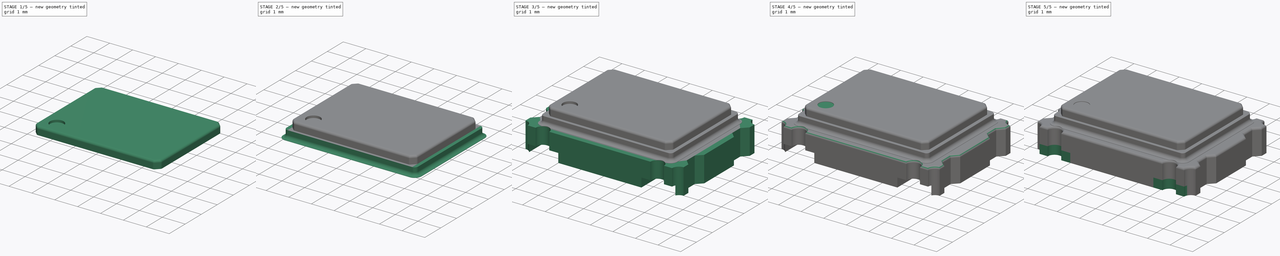
[diagram: build sequence overview — one tinted view per stage of 5, left to right]
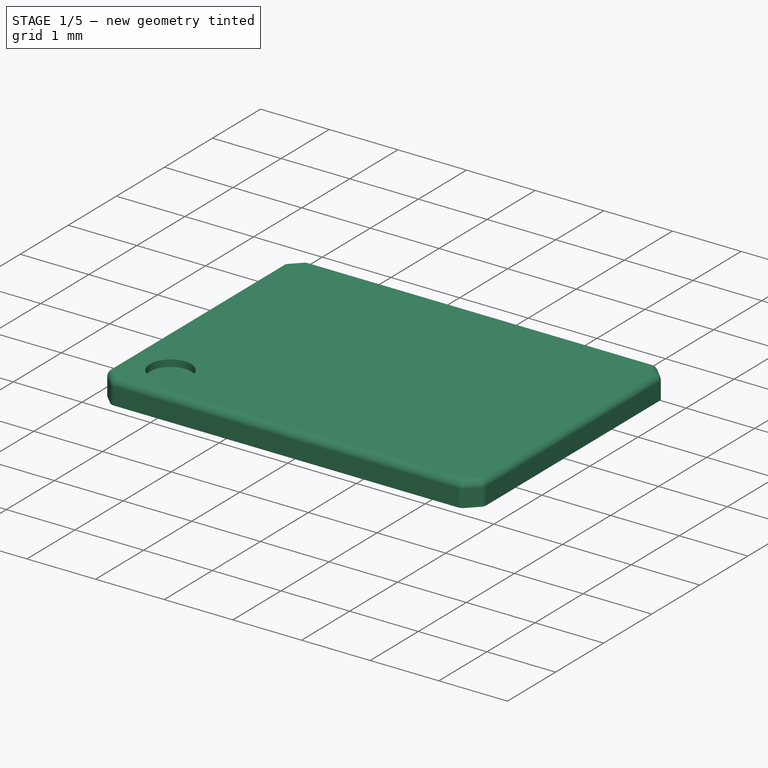
[diagram: stage 1 of 5 — iso view after this stage's code; geometry added in this stage tinted green]
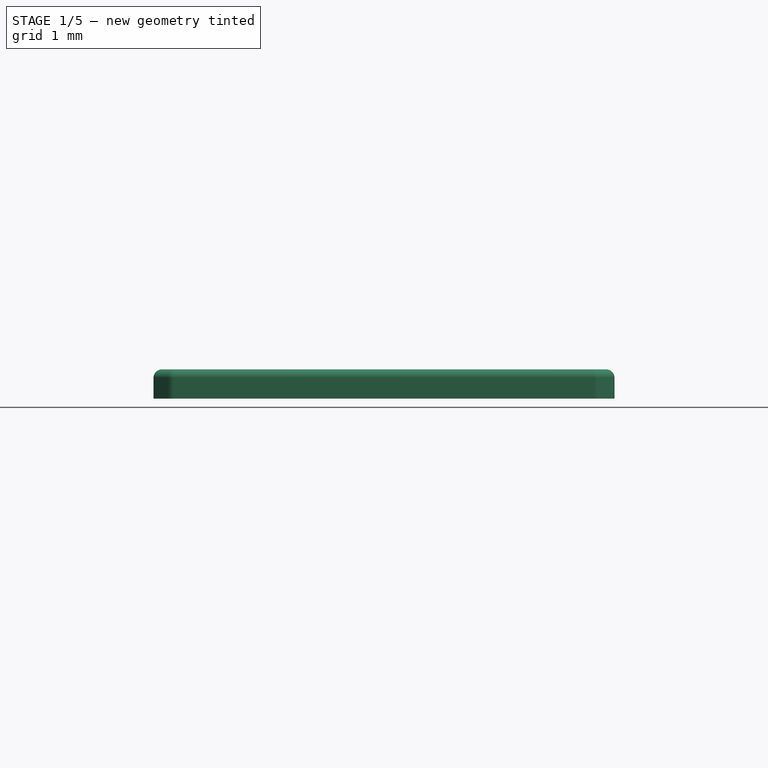
[diagram: stage 1 of 5 — front view after this stage's code; geometry added in this stage tinted green]
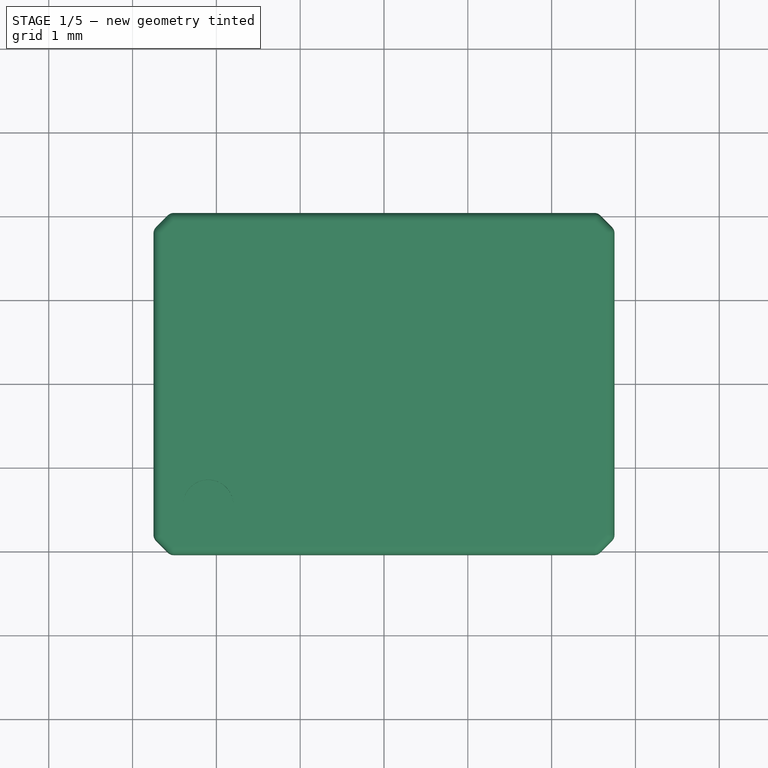
[diagram: stage 1 of 5 — top view after this stage's code; geometry added in this stage tinted green]
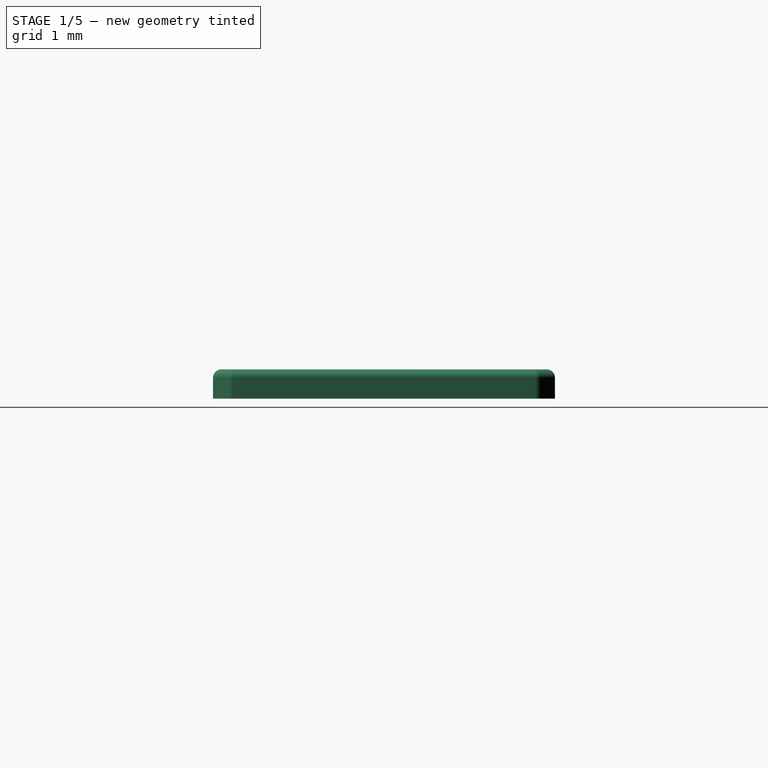
[diagram: stage 1 of 5 — right view after this stage's code; geometry added in this stage tinted green]
FCSTD DOCUMENT  (FreeCAD 0.19R)
Label: Oscillator_SMD_Abracon_ASV-4Pin_7.0x5.1mm
License: All rights reserved
LicenseURL: http://en.wikipedia.org/wiki/All_rights_reserved
objects: Sketcher::SketchObject×11, PartDesign::Pad×7, PartDesign::Body×5, PartDesign::Fillet×4, PartDesign::Pocket×4, Part::MultiFuse×1, Part::Feature×1
note: 44 computed .brp shape members not serialized (recipe doc carries the construction recipe); baked Part::Feature solids carry a one-line shape summary decoded from their .brp

FEATURE [Sketcher::SketchObject] Sketch004
  MapMode = 5
  Placement = pos=(0,0,1.49) rot=(0,0,1;0rad)
  sketch-geometry (8):
    g0: LineSegment StartX=-2.75 StartY=1.84 StartZ=0 EndX=-2.55 EndY=2.04 EndZ=0
    g1: LineSegment StartX=-2.55 StartY=2.04 StartZ=0 EndX=2.55 EndY=2.04 EndZ=0
    g2: LineSegment StartX=2.55 StartY=2.04 StartZ=0 EndX=2.75 EndY=1.84 EndZ=0
    g3: LineSegment StartX=2.75 StartY=1.84 StartZ=0 EndX=2.75 EndY=-1.84 EndZ=0
    g4: LineSegment StartX=2.75 StartY=-1.84 StartZ=0 EndX=2.55 EndY=-2.04 EndZ=0
    g5: LineSegment StartX=2.55 StartY=-2.04 StartZ=0 EndX=-2.55 EndY=-2.04 EndZ=0
    g6: LineSegment StartX=-2.55 StartY=-2.04 StartZ=0 EndX=-2.75 EndY=-1.84 EndZ=0
    g7: LineSegment StartX=-2.75 StartY=-1.84 StartZ=0 EndX=-2.75 EndY=1.84 EndZ=0
  constraints (18):
    c: Coincident(g0,g1)
    c: Coincident(g1,g2)
    c: Coincident(g2,g3)
    c: Coincident(g3,g4)
    c: Coincident(g4,g5)
    c: Coincident(g5,g6)
    c: Coincident(g6,g7)
    c: Coincident(g7,g0)
    c: Symmetric(g0,g1,g-2)
    c: Symmetric(g5,g4,g-2)
    c: Symmetric(g6,g0,g-1)
    c: Symmetric(g3,g2,g-1)
    c: Angle(g0,g1) = 2.35619
    c: Symmetric(g0,g5,g-1)
    c: Symmetric(g0,g2,g-2)
    c: DistanceX(g6,g3) = 5.5
    c: DistanceX(g5,g4) = 5.1
    c: DistanceY(g5,g0) = 4.08
FEATURE [PartDesign::Pad] Pad003
  Length = 0.35
  Length2 = 100
  Placement = pos=(0,0,1.49) rot=(0,0,1;0rad)
  Profile = -> Sketch004
  Type = 0
FEATURE [Sketcher::SketchObject] Sketch011
  MapMode = 5
  Placement = pos=(0,0,1.84) rot=(0,0,1;0rad)
  sketch-geometry (1):
    g0: Circle CenterX=-2.09726 CenterY=-1.4457 CenterZ=0 NormalX=0 NormalY=0 NormalZ=1 AngleXU=0 Radius=0.3
  constraints (1):
    c: Radius(g0) = 0.3
FEATURE [PartDesign::Pocket] Pocket004
  BaseFeature = -> Pad003
  Length = 0.1
  Length2 = 100
  Placement = pos=(0,0,1.49) rot=(0,0,1;0rad)
  Profile = -> Sketch011
  Type = 0
FEATURE [PartDesign::Body] Body001
  Group = -> [Sketch002,Pad001,Sketch003,Pad002,Fillet,Sketch005,Pocket,Fillet002]
  Origin = -> Origin001
  Tip = -> Fillet002
FEATURE [PartDesign::Fillet] Fillet003
  Base = -> Pocket004 [Edge16,Edge18,Edge7,Edge20,Edge19,Edge17,Edge10,Edge4,Edge25,Edge24,Edge5,Edge22,Edge2,Edge1,Edge23,Edge8]
  BaseFeature = -> Pocket004
  Placement = pos=(0,0,1.49) rot=(0,0,1;0rad)
  Radius = 0.1
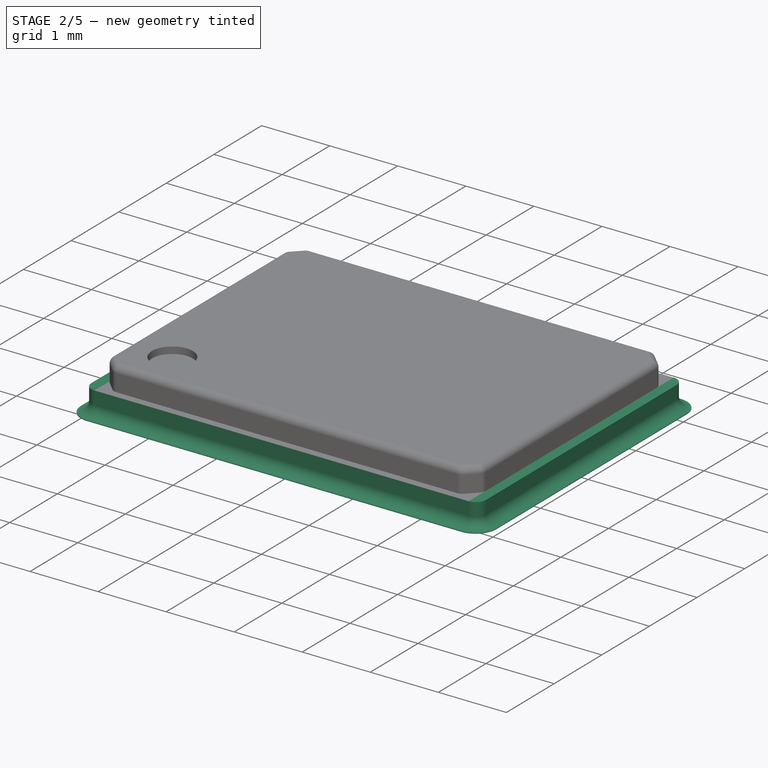
[diagram: stage 2 of 5 — iso view after this stage's code; geometry added in this stage tinted green]
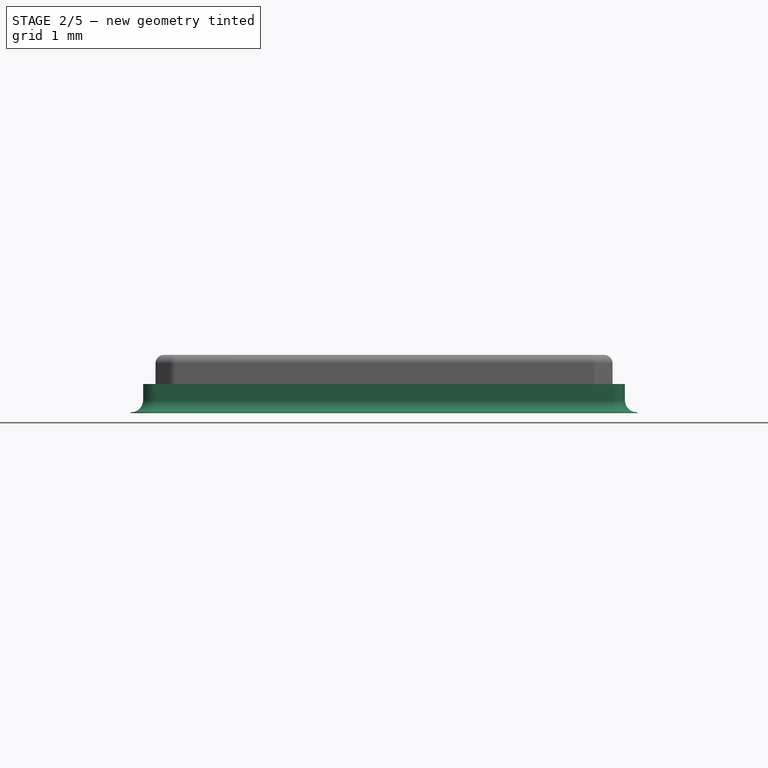
[diagram: stage 2 of 5 — front view after this stage's code; geometry added in this stage tinted green]
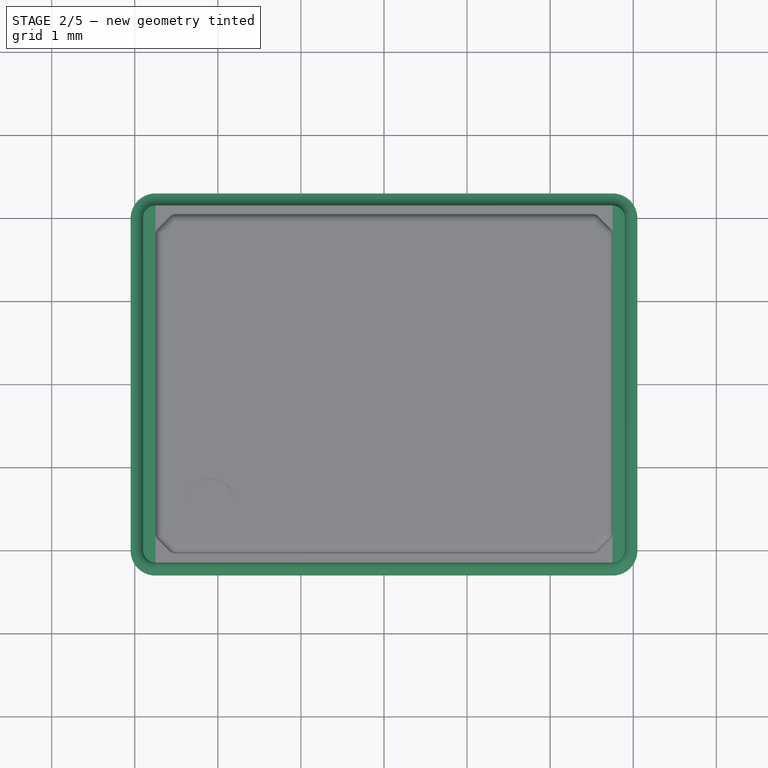
[diagram: stage 2 of 5 — top view after this stage's code; geometry added in this stage tinted green]
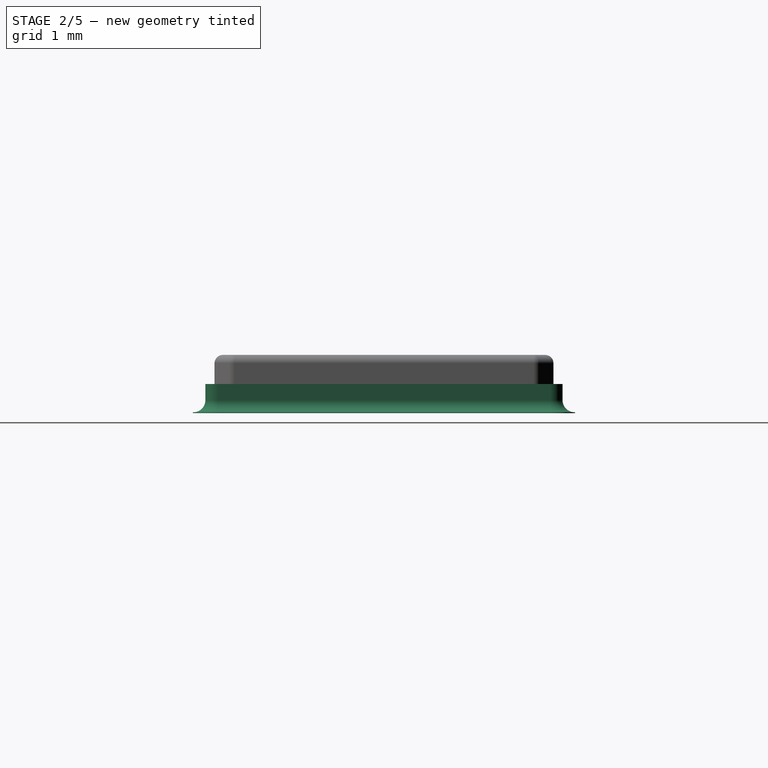
[diagram: stage 2 of 5 — right view after this stage's code; geometry added in this stage tinted green]
FEATURE [Sketcher::SketchObject] Sketch002
  MapMode = 2
  Placement = pos=(0,0,1.14) rot=(0,0,1;0rad)
  Support = -> [Sketch002]
  sketch-geometry (8):
    g0: LineSegment StartX=-2.75 StartY=2.3 StartZ=0 EndX=2.75 EndY=2.3 EndZ=0
    g1: LineSegment StartX=3.05 StartY=2 StartZ=0 EndX=3.05 EndY=-2 EndZ=0
    g2: LineSegment StartX=2.75 StartY=-2.3 StartZ=0 EndX=-2.75 EndY=-2.3 EndZ=0
    g3: LineSegment StartX=-3.05 StartY=-2 StartZ=0 EndX=-3.05 EndY=2 EndZ=0
    g4: ArcOfCircle CenterX=-2.75 CenterY=2 CenterZ=0 NormalX=0 NormalY=0 NormalZ=1 AngleXU=0 Radius=0.3 StartAngle=1.5708 EndAngle=3.14159
    g5: ArcOfCircle CenterX=2.75 CenterY=2 CenterZ=0 NormalX=0 NormalY=0 NormalZ=1 AngleXU=0 Radius=0.3 StartAngle=4e-16 EndAngle=1.5708
    g6: ArcOfCircle CenterX=2.75 CenterY=-2 CenterZ=0 NormalX=0 NormalY=0 NormalZ=1 AngleXU=0 Radius=0.3 StartAngle=4.71239 EndAngle=6.28319
    g7: ArcOfCircle CenterX=-2.75 CenterY=-2 CenterZ=0 NormalX=0 NormalY=0 NormalZ=1 AngleXU=0 Radius=0.3 StartAngle=3.14159 EndAngle=4.71239
  constraints (18):
    c: Horizontal(g2)
    c: Tangent(g0,g4) = 1.5708
    c: Tangent(g3,g4) = 1.5708
    c: Tangent(g0,g5) = 1.5708
    c: Tangent(g1,g5) = 1.5708
    c: Tangent(g1,g6) = 1.5708
    c: Tangent(g2,g6) = 1.5708
    c: Tangent(g2,g7) = 1.5708
    c: Tangent(g3,g7) = 1.5708
    c: DistanceX(g3,g1) = 6.1
    c: DistanceY(g2,g0) = 4.6
    c: Radius(g4) = 0.3
    c: Vertical(g3)
    c: Equal(g4,g7)
    c: Equal(g7,g6)
    c: Equal(g4,g5)
    c: Symmetric(g0,g0,g-2)
    c: Symmetric(g1,g1,g-1)
FEATURE [PartDesign::Pad] Pad001
  Length = 0.01
  Length2 = 100
  Placement = pos=(0,0,1.14) rot=(0,0,1;0rad)
  Profile = -> Sketch002
  Type = 0
FEATURE [Sketcher::SketchObject] Sketch003
  MapMode = 5
  Placement = pos=(0,0,1.15) rot=(0,0,1;0rad)
  Support = -> [Pad001]
  sketch-geometry (8):
    g0: LineSegment StartX=-2.75 StartY=2.15 StartZ=0 EndX=2.75 EndY=2.15 EndZ=0
    g1: LineSegment StartX=2.9 StartY=2 StartZ=0 EndX=2.9 EndY=-2 EndZ=0
    g2: LineSegment StartX=2.75 StartY=-2.15 StartZ=0 EndX=-2.75 EndY=-2.15 EndZ=0
    g3: LineSegment StartX=-2.9 StartY=-2 StartZ=0 EndX=-2.9 EndY=2 EndZ=0
    g4: ArcOfCircle CenterX=-2.75 CenterY=2 CenterZ=0 NormalX=0 NormalY=0 NormalZ=1 AngleXU=0 Radius=0.15 StartAngle=1.5708 EndAngle=3.14159
    g5: ArcOfCircle CenterX=-2.75 CenterY=-2 CenterZ=0 NormalX=0 NormalY=0 NormalZ=1 AngleXU=0 Radius=0.15 StartAngle=3.14159 EndAngle=4.71239
    g6: ArcOfCircle CenterX=2.75 CenterY=-2 CenterZ=0 NormalX=0 NormalY=0 NormalZ=1 AngleXU=0 Radius=0.15 StartAngle=4.71239 EndAngle=6.28319
    g7: ArcOfCircle CenterX=2.75 CenterY=2 CenterZ=0 NormalX=0 NormalY=0 NormalZ=1 AngleXU=0 Radius=0.15 StartAngle=0 EndAngle=1.5708
FEATURE [PartDesign::Pad] Pad002
  BaseFeature = -> Pad001
  Length = 0.34
  Length2 = 100
  Placement = pos=(0,0,1.14) rot=(0,0,1;0rad)
  Profile = -> Sketch003
  Type = 0
FEATURE [PartDesign::Fillet] Fillet
  Base = -> Pad002 [Edge25]
  BaseFeature = -> Pad002
  Placement = pos=(0,0,1.14) rot=(0,0,1;0rad)
  Radius = 0.145
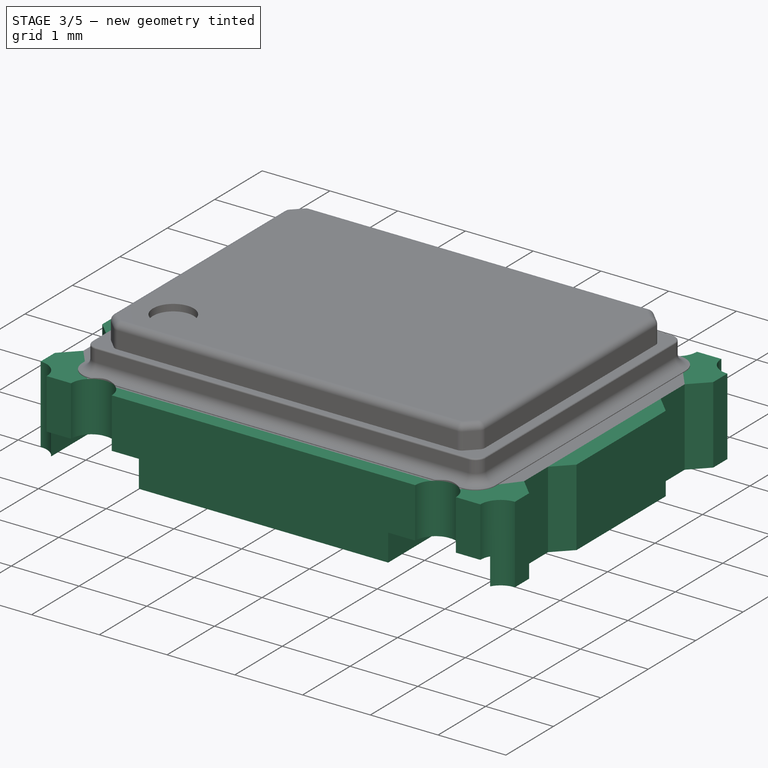
[diagram: stage 3 of 5 — iso view after this stage's code; geometry added in this stage tinted green]
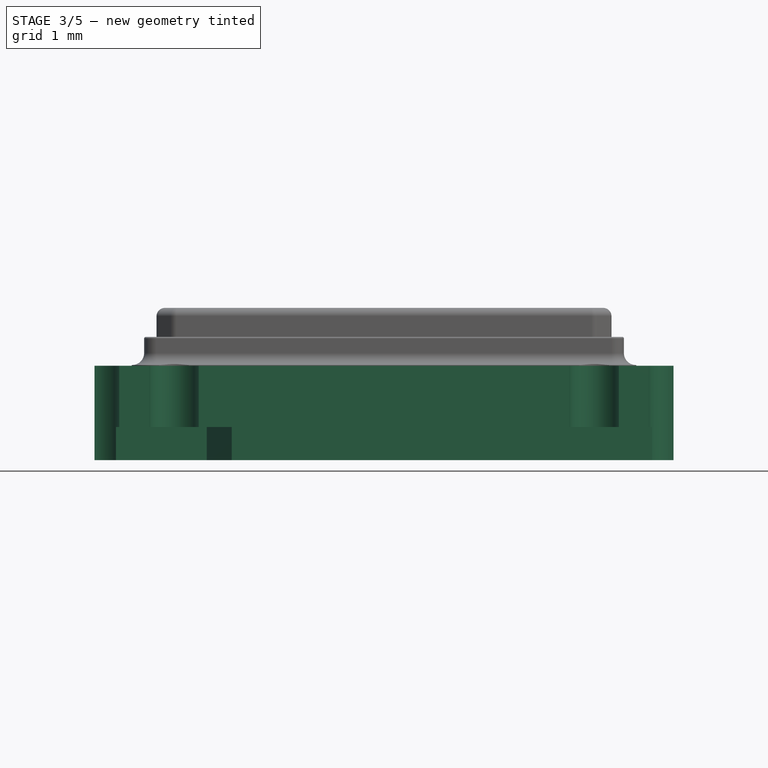
[diagram: stage 3 of 5 — front view after this stage's code; geometry added in this stage tinted green]
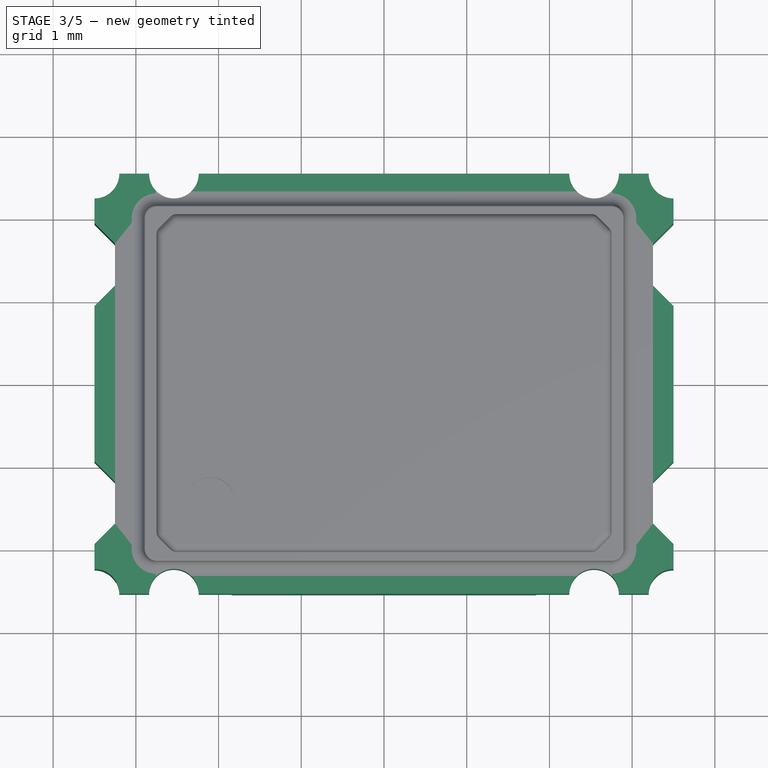
[diagram: stage 3 of 5 — top view after this stage's code; geometry added in this stage tinted green]
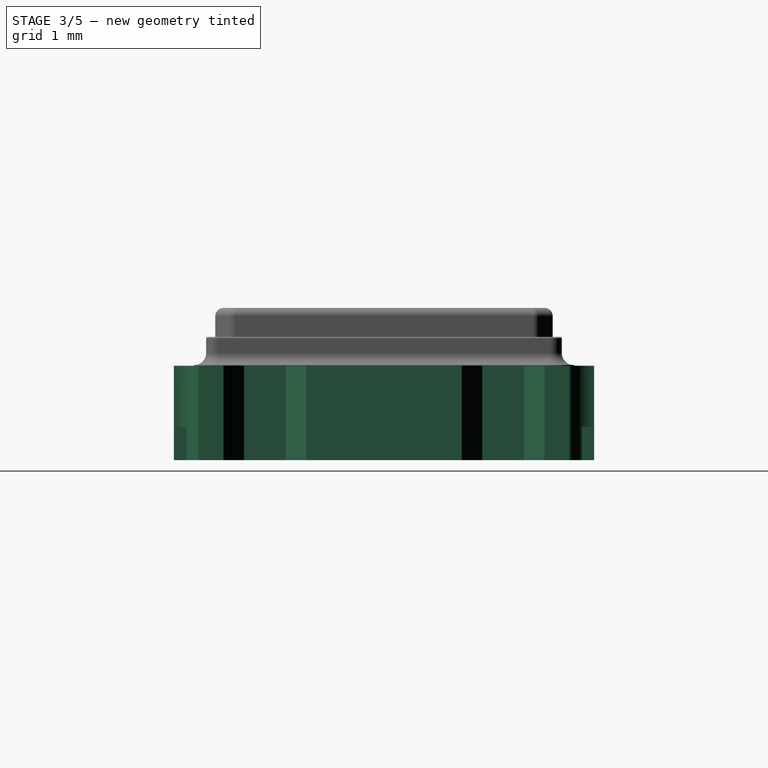
[diagram: stage 3 of 5 — right view after this stage's code; geometry added in this stage tinted green]
FEATURE [Sketcher::SketchObject] Sketch
  MapMode = 5
  Support = -> [XY_Plane]
  sketch-geometry (37):
    g0: LineSegment [constr] StartX=-3.5 StartY=2.54 StartZ=0 EndX=3.5 EndY=2.54 EndZ=0
    g1: LineSegment [constr] StartX=3.5 StartY=2.54 StartZ=0 EndX=3.5 EndY=-2.54 EndZ=0
    g2: LineSegment [constr] StartX=3.5 StartY=-2.54 StartZ=0 EndX=-3.5 EndY=-2.54 EndZ=0
    g3: LineSegment [constr] StartX=-3.5 StartY=-2.54 StartZ=0 EndX=-3.5 EndY=2.54 EndZ=0
    g4: ArcOfCircle CenterX=-2.54 CenterY=2.54 CenterZ=0 NormalX=0 NormalY=0 NormalZ=1 AngleXU=0 Radius=0.3 StartAngle=3.14159 EndAngle=6.28319
    g5: ArcOfCircle CenterX=2.54 CenterY=2.54 CenterZ=0 NormalX=0 NormalY=0 NormalZ=1 AngleXU=0 Radius=0.3 StartAngle=3.14159 EndAngle=6.28319
    g6: ArcOfCircle CenterX=-2.54 CenterY=-2.54 CenterZ=0 NormalX=0 NormalY=0 NormalZ=1 AngleXU=0 Radius=0.3 StartAngle=2e-16 EndAngle=3.14159
    g7: ArcOfCircle CenterX=2.54 CenterY=-2.54 CenterZ=0 NormalX=0 NormalY=0 NormalZ=1 AngleXU=0 Radius=0.3 StartAngle=4e-16 EndAngle=3.14159
    g8: LineSegment StartX=-2.24 StartY=2.54 StartZ=0 EndX=2.24 EndY=2.54 EndZ=0
    g9: LineSegment StartX=-2.24 StartY=-2.54 StartZ=0 EndX=2.24 EndY=-2.54 EndZ=0
    g10: ArcOfCircle CenterX=3.5 CenterY=-2.54 CenterZ=0 NormalX=0 NormalY=0 NormalZ=1 AngleXU=0 Radius=0.3 StartAngle=1.5708 EndAngle=3.14159
    g11: ArcOfCircle CenterX=3.5 CenterY=2.54 CenterZ=0 NormalX=0 NormalY=0 NormalZ=1 AngleXU=0 Radius=0.3 StartAngle=3.14159 EndAngle=4.71239
    g12: ArcOfCircle CenterX=-3.5 CenterY=2.54 CenterZ=0 NormalX=0 NormalY=0 NormalZ=1 AngleXU=0 Radius=0.3 StartAngle=4.71239 EndAngle=6.28319
    g13: ArcOfCircle CenterX=-3.5 CenterY=-2.54 CenterZ=0 NormalX=0 NormalY=0 NormalZ=1 AngleXU=0 Radius=0.3 StartAngle=1e-16 EndAngle=1.5708
    g14: LineSegment StartX=-2.84 StartY=-2.54 StartZ=0 EndX=-3.2 EndY=-2.54 EndZ=0
    g15: LineSegment StartX=-3.2 StartY=2.54 StartZ=0 EndX=-2.84 EndY=2.54 EndZ=0
    g16: LineSegment StartX=2.84 StartY=2.54 StartZ=0 EndX=3.2 EndY=2.54 EndZ=0
    g17: LineSegment StartX=-3.5 StartY=2.24 StartZ=0 EndX=-3.5 EndY=1.94 EndZ=0
    g18: LineSegment StartX=-3.5 StartY=1.94 StartZ=0 EndX=-3.25251 EndY=1.69251 EndZ=0
    g19: LineSegment StartX=-3.25251 StartY=1.69251 StartZ=0 EndX=-3.25251 EndY=1.18749 EndZ=0
    g20: LineSegment StartX=-3.25251 StartY=1.18749 StartZ=0 EndX=-3.5 EndY=0.94 EndZ=0
    g21: LineSegment StartX=-3.5 StartY=0.94 StartZ=0 EndX=-3.5 EndY=-0.94 EndZ=0
    g22: LineSegment StartX=-3.5 StartY=-0.94 StartZ=0 EndX=-3.25251 EndY=-1.18749 EndZ=0
    g23: LineSegment StartX=-3.25251 StartY=-1.18749 StartZ=0 EndX=-3.25251 EndY=-1.69251 EndZ=0
    g24: LineSegment StartX=-3.25251 StartY=-1.69251 StartZ=0 EndX=-3.5 EndY=-1.94 EndZ=0
    g25: LineSegment StartX=-3.5 StartY=-1.94 StartZ=0 EndX=-3.5 EndY=-2.24 EndZ=0
    g26: GeomPoint X=-3.25251 Y=1.44 Z=0
    g27: LineSegment StartX=3.2 StartY=-2.54 StartZ=0 EndX=2.84 EndY=-2.54 EndZ=0
    g28: LineSegment StartX=3.5 StartY=2.24 StartZ=0 EndX=3.5 EndY=1.94 EndZ=0
    g29: LineSegment StartX=3.5 StartY=1.94 StartZ=0 EndX=3.25251 EndY=1.69251 EndZ=0
    g30: LineSegment StartX=3.25251 StartY=1.69251 StartZ=0 EndX=3.25251 EndY=1.18749 EndZ=0
    g31: LineSegment StartX=3.25251 StartY=1.18749 StartZ=0 EndX=3.5 EndY=0.94 EndZ=0
    g32: LineSegment StartX=3.5 StartY=0.94 StartZ=0 EndX=3.5 EndY=-0.94 EndZ=0
    g33: LineSegment StartX=3.5 StartY=-0.94 StartZ=0 EndX=3.25251 EndY=-1.18749 EndZ=0
    g34: LineSegment StartX=3.25251 StartY=-1.18749 StartZ=0 EndX=3.25251 EndY=-1.69251 EndZ=0
    g35: LineSegment StartX=3.25251 StartY=-1.69251 StartZ=0 EndX=3.5 EndY=-1.94 EndZ=0
    g36: LineSegment StartX=3.5 StartY=-1.94 StartZ=0 EndX=3.5 EndY=-2.24 EndZ=0
  constraints (96):
    c: Coincident(g0,g1)
    c: Coincident(g1,g2)
    c: Coincident(g2,g3)
    c: Coincident(g3,g0)
    c: Horizontal(g2)
    c: Vertical(g1)
    c: DistanceX(g0,g0) = 7
    c: DistanceY(g3,g3) = 5.08
    c: Symmetric(g0,g2,g-1)
    c: Symmetric(g0,g0,g-2)
    c: PointOnObject(g4,g0)
    c: PointOnObject(g4,g0)
    c: PointOnObject(g4,g0)
    c: PointOnObject(g5,g0)
    c: PointOnObject(g5,g0)
    c: PointOnObject(g6,g2)
    c: PointOnObject(g6,g2)
    c: PointOnObject(g7,g2)
    c: PointOnObject(g7,g2)
    c: Equal(g4,g5)
    c: Equal(g6,g7)
    c: Equal(g6,g4)
    c: Radius(g4) = 0.3
    c: Symmetric(g4,g5,g-2)
    c: Symmetric(g4,g6,g-1)
    c: Symmetric(g5,g7,g-1)
    c: DistanceX(g4,g5) = 5.08
    c: Coincident(g8,g4)
    c: Coincident(g8,g5)
    c: Coincident(g9,g6)
    c: Coincident(g9,g7)
    c: Coincident(g10,g1)
    c: PointOnObject(g10,g2)
    c: PointOnObject(g10,g1)
    c: Equal(g7,g10)
    c: Coincident(g11,g0)
    c: PointOnObject(g11,g0)
    c: PointOnObject(g11,g1)
    c: Equal(g5,g11)
    c: Coincident(g12,g0)
    c: PointOnObject(g12,g0)
    c: PointOnObject(g12,g3)
    c: Equal(g12,g4)
    c: Coincident(g13,g2)
    c: PointOnObject(g13,g3)
    c: PointOnObject(g13,g2)
    c: Equal(g13,g6)
    c: Coincident(g14,g6)
    c: Coincident(g14,g13)
    c: Coincident(g15,g12)
    c: Coincident(g15,g4)
    c: Coincident(g16,g5)
    c: Coincident(g16,g11)
    c: Coincident(g12,g17)
    c: Coincident(g17,g18)
    c: Coincident(g18,g19)
    c: Vertical(g19)
    c: Coincident(g19,g20)
    c: PointOnObject(g20,g3)
    c: Coincident(g20,g21)
    c: Coincident(g21,g22)
    c: Coincident(g22,g23)
    c: Coincident(g23,g24)
    c: PointOnObject(g24,g3)
    c: Coincident(g24,g25)
    c: Coincident(g25,g13)
    c: Symmetric(g17,g24,g-1)
    c: Symmetric(g20,g21,g-1)
    c: Symmetric(g19,g22,g-1)
    c: Symmetric(g18,g23,g-1)
    c: Symmetric(g19,g18,g26)
    c: DistanceY(g26,g12) = 1.1
    c: Angle(g18,g17) = 2.35619
    c: Angle(g21,g20) = 2.35619
    c: DistanceY(g21,g21) = 1.88
    c: Coincident(g27,g7)
    c: Coincident(g10,g27)
    c: Coincident(g28,g29)
    c: Coincident(g29,g30)
    c: Coincident(g30,g31)
    c: Coincident(g31,g32)
    c: Coincident(g32,g33)
    c: Coincident(g33,g34)
    c: Coincident(g34,g35)
    c: Coincident(g35,g36)
    c: Coincident(g36,g10)
    c: Symmetric(g17,g28,g-2)
    c: Symmetric(g18,g29,g-2)
    c: Symmetric(g19,g30,g-2)
    c: Symmetric(g20,g31,g-2)
    c: Symmetric(g21,g32,g-2)
    c: Symmetric(g22,g33,g-2)
    c: Symmetric(g23,g34,g-2)
    c: Symmetric(g24,g35,g-2)
    c: Coincident(g11,g28)
    c: Distance(g17,g18) = 0.35
FEATURE [PartDesign::Pad] Pad
  Length = 1.14
  Length2 = 100
  Profile = -> Sketch
  Type = 0
FEATURE [Sketcher::SketchObject] Sketch005
  MapMode = 5
  Support = -> [XY_Plane001]
  sketch-geometry (4):
    g0: Circle CenterX=-2.54 CenterY=2.54 CenterZ=0 NormalX=0 NormalY=0 NormalZ=1 AngleXU=0 Radius=0.3
    g1: Circle CenterX=2.54 CenterY=2.54 CenterZ=0 NormalX=0 NormalY=0 NormalZ=1 AngleXU=0 Radius=0.3
    g2: Circle CenterX=2.54 CenterY=-2.54 CenterZ=0 NormalX=0 NormalY=0 NormalZ=1 AngleXU=0 Radius=0.3
    g3: Circle CenterX=-2.54 CenterY=-2.54 CenterZ=0 NormalX=0 NormalY=0 NormalZ=1 AngleXU=0 Radius=0.3
  constraints (9):
    c: Radius(g0) = 0.3
    c: Symmetric(g0,g1,g-2)
    c: Symmetric(g0,g3,g-1)
    c: Symmetric(g3,g2,g-2)
    c: Equal(g0,g1)
    c: Equal(g0,g3)
    c: Equal(g3,g2)
    c: DistanceX(g0,g1) = 5.08
    c: DistanceY(g3,g0) = 5.08
FEATURE [PartDesign::Pocket] Pocket
  BaseFeature = -> Fillet
  Length = 5
  Length2 = 100
  Midplane = true
  Placement = pos=(0,0,1.14) rot=(0,0,1;0rad)
  Profile = -> Sketch005
  Type = 1
FEATURE [PartDesign::Body] Body003  label="Pads"
  Group = -> [Sketch007,Pad004,Sketch006,Pad005,Sketch008,Pocket001]
  Origin = -> Origin003
  Tip = -> Pocket001
FEATURE [Sketcher::SketchObject] Sketch009
  MapMode = 5
  Support = -> [XY_Plane]
  sketch-geometry (20):
    g0: LineSegment StartX=-3.24 StartY=-2.54 StartZ=0 EndX=-1.84 EndY=-2.54 EndZ=0
    g1: LineSegment [constr] StartX=-1.84 StartY=-2.54 StartZ=0 EndX=-1.84 EndY=-1.54 EndZ=0
    g2: LineSegment [constr] StartX=-1.84 StartY=-1.54 StartZ=0 EndX=-3.24 EndY=-1.54 EndZ=0
    g3: LineSegment [constr] StartX=-3.24 StartY=-1.54 StartZ=0 EndX=-3.24 EndY=-2.54 EndZ=0
    g4: LineSegment StartX=1.84 StartY=-2.54 StartZ=0 EndX=3.24 EndY=-2.54 EndZ=0
    g5: LineSegment StartX=3.24 StartY=-2.54 StartZ=0 EndX=3.24 EndY=-1.54 EndZ=0
    g6: LineSegment StartX=3.24 StartY=-1.54 StartZ=0 EndX=1.84 EndY=-1.54 EndZ=0
    g7: LineSegment StartX=1.84 StartY=-1.54 StartZ=0 EndX=1.84 EndY=-2.54 EndZ=0
    g8: LineSegment StartX=-3.24 StartY=1.54 StartZ=0 EndX=-1.84 EndY=1.54 EndZ=0
    g9: LineSegment StartX=-1.84 StartY=1.54 StartZ=0 EndX=-1.84 EndY=2.54 EndZ=0
    g10: LineSegment StartX=-1.84 StartY=2.54 StartZ=0 EndX=-3.24 EndY=2.54 EndZ=0
    g11: LineSegment StartX=-3.24 StartY=2.54 StartZ=0 EndX=-3.24 EndY=1.54 EndZ=0
    g12: LineSegment StartX=1.84 StartY=1.54 StartZ=0 EndX=3.24 EndY=1.54 EndZ=0
    g13: LineSegment StartX=3.24 StartY=1.54 StartZ=0 EndX=3.24 EndY=2.54 EndZ=0
    g14: LineSegment StartX=3.24 StartY=2.54 StartZ=0 EndX=1.84 EndY=2.54 EndZ=0
    g15: LineSegment StartX=1.84 StartY=2.54 StartZ=0 EndX=1.84 EndY=1.54 EndZ=0
    g16: LineSegment StartX=-3.24 StartY=-2.54 StartZ=0 EndX=-3.24 EndY=-1.54 EndZ=0
    g17: LineSegment StartX=-3.24 StartY=-1.54 StartZ=0 EndX=-2.1431 EndY=-1.54 EndZ=0
    g18: LineSegment StartX=-1.84 StartY=-2.54 StartZ=0 EndX=-1.84 EndY=-2.19 EndZ=0
    g19: LineSegment StartX=-2.1431 StartY=-1.54 StartZ=0 EndX=-1.84 EndY=-2.19 EndZ=0
  constraints (55):
    c: Coincident(g0,g1)
    c: Coincident(g1,g2)
    c: Coincident(g2,g3)
    c: Coincident(g3,g0)
    c: Horizontal(g0)
    c: Horizontal(g2)
    c: Vertical(g1)
    c: Vertical(g3)
    c: DistanceX(g0,g0) = 1.4
    c: DistanceY(g3,g3) = 1
    c: Coincident(g4,g5)
    c: Coincident(g5,g6)
    c: Coincident(g6,g7)
    c: Coincident(g7,g4)
    c: Horizontal(g4)
    c: Horizontal(g6)
    c: Vertical(g5)
    c: Vertical(g7)
    c: Equal(g0,g4) = 1.4
    c: Equal(g3,g7) = 1
    c: Symmetric(g1,g6,g-2)
    c: DistanceX(g1,g6) = 3.68
    c: Coincident(g8,g9)
    c: Coincident(g9,g10)
    c: Coincident(g10,g11)
    c: Coincident(g11,g8)
    c: Horizontal(g8)
    c: Horizontal(g10)
    c: Vertical(g9)
    c: Vertical(g11)
    c: Equal(g0,g8) = 1.4
    c: Equal(g3,g11) = 1
    c: Coincident(g12,g13)
    c: Coincident(g13,g14)
    c: Coincident(g14,g15)
    c: Coincident(g15,g12)
    c: Horizontal(g12)
    c: Horizontal(g14)
    c: Vertical(g13)
    c: Vertical(g15)
    c: Equal(g8,g12) = 1.4
    c: Equal(g11,g15) = 1
    c: Symmetric(g1,g8,g-1)
    c: Symmetric(g6,g12,g-1)
    c: DistanceY(g0,g10) = 5.08
    c: Coincident(g16,g0)
    c: Coincident(g2,g16)
    c: PointOnObject(g17,g2)
    c: Coincident(g18,g0)
    c: PointOnObject(g18,g1)
    c: Coincident(g19,g17)
    c: Coincident(g19,g18)
    c: Angle(g19,g18) = 2.70526
    c: DistanceY(g0,g18) = 0.35
    c: Coincident(g2,g17)
FEATURE [PartDesign::Pocket] Pocket002
  BaseFeature = -> Pad
  Length = 0.4
  Length2 = 100
  Profile = -> Sketch009
  Reversed = true
  Type = 0
FEATURE [PartDesign::Body] Body
  Group = -> [Sketch,Pad,Sketch009,Pocket002,Fillet001]
  Origin = -> Origin
  Tip = -> Fillet001
FEATURE [PartDesign::Fillet] Fillet002
  Base = -> Pocket [Face29]
  BaseFeature = -> Pocket
  Placement = pos=(0,0,1.14) rot=(0,0,1;0rad)
  Radius = 0.02
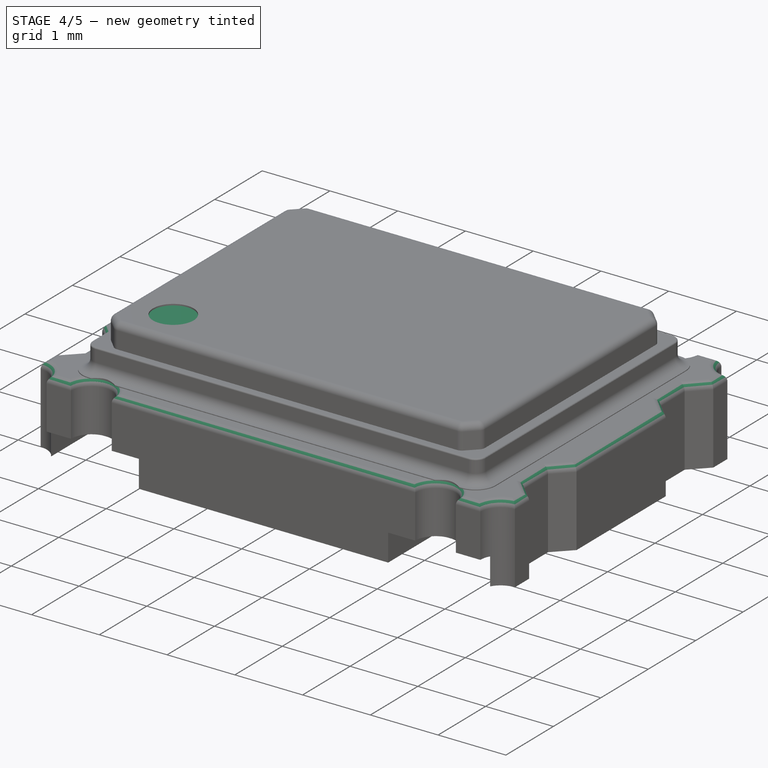
[diagram: stage 4 of 5 — iso view after this stage's code; geometry added in this stage tinted green]
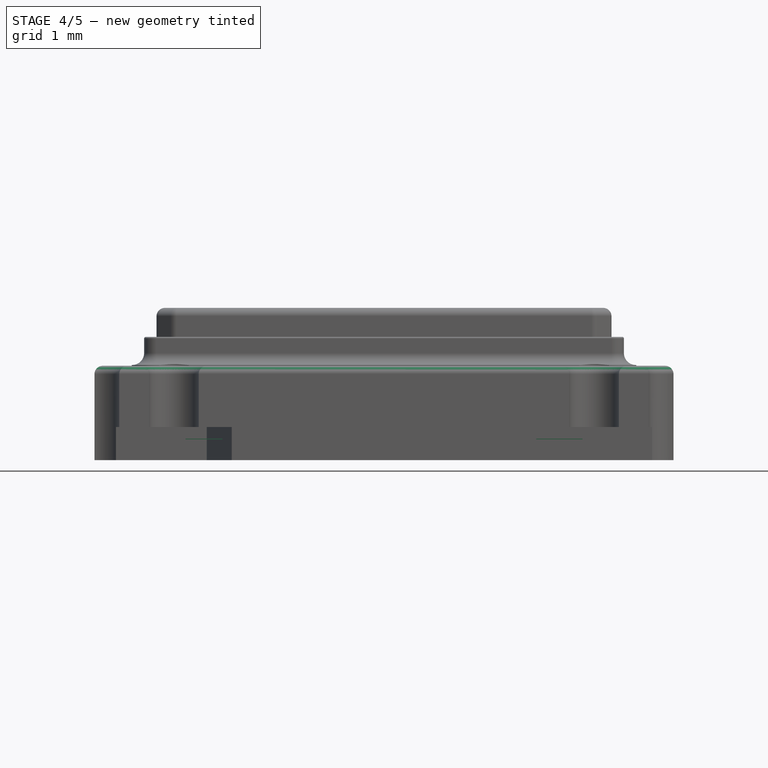
[diagram: stage 4 of 5 — front view after this stage's code; geometry added in this stage tinted green]
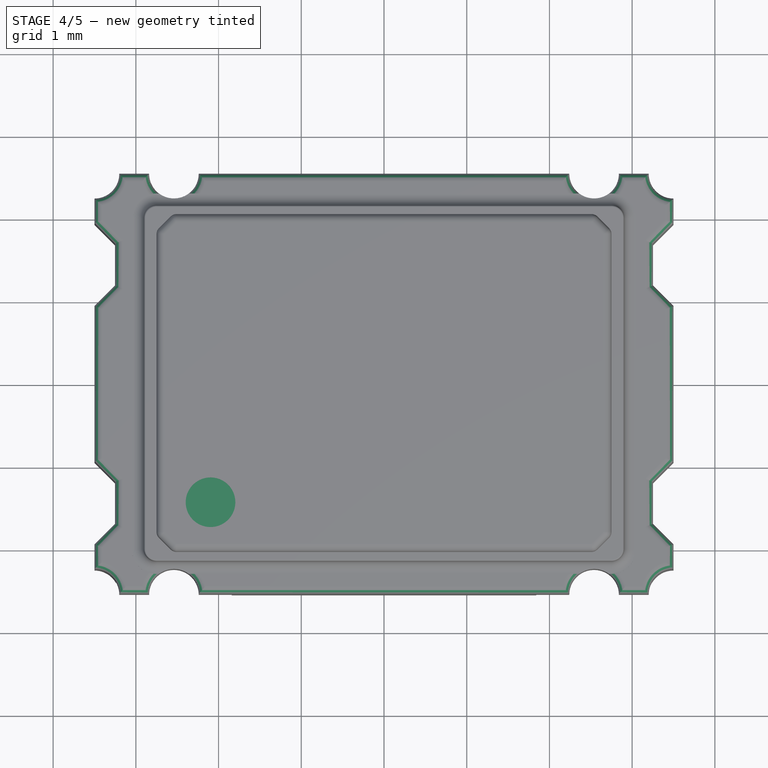
[diagram: stage 4 of 5 — top view after this stage's code; geometry added in this stage tinted green]
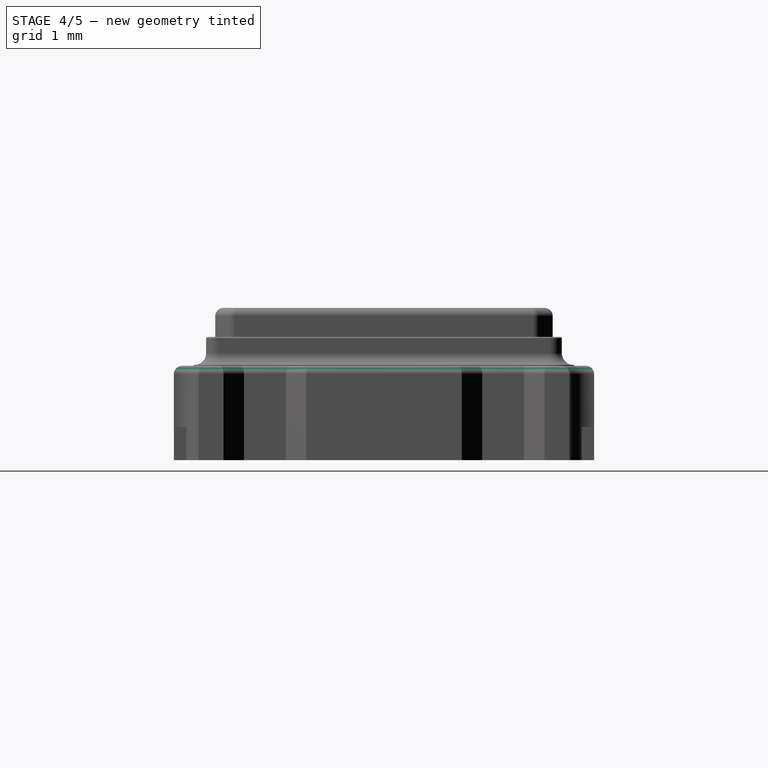
[diagram: stage 4 of 5 — right view after this stage's code; geometry added in this stage tinted green]
FEATURE [Sketcher::SketchObject] Sketch006
  MapMode = 5
  Support = -> [XY_Plane003]
  sketch-geometry (20):
    g0: LineSegment StartX=-3.24 StartY=-2.54 StartZ=0 EndX=-1.84 EndY=-2.54 EndZ=0
    g1: LineSegment [constr] StartX=-1.84 StartY=-2.54 StartZ=0 EndX=-1.84 EndY=-1.54 EndZ=0
    g2: LineSegment [constr] StartX=-1.84 StartY=-1.54 StartZ=0 EndX=-3.24 EndY=-1.54 EndZ=0
    g3: LineSegment [constr] StartX=-3.24 StartY=-1.54 StartZ=0 EndX=-3.24 EndY=-2.54 EndZ=0
    g4: LineSegment StartX=1.84 StartY=-2.54 StartZ=0 EndX=3.24 EndY=-2.54 EndZ=0
    g5: LineSegment StartX=3.24 StartY=-2.54 StartZ=0 EndX=3.24 EndY=-1.54 EndZ=0
    g6: LineSegment StartX=3.24 StartY=-1.54 StartZ=0 EndX=1.84 EndY=-1.54 EndZ=0
    g7: LineSegment StartX=1.84 StartY=-1.54 StartZ=0 EndX=1.84 EndY=-2.54 EndZ=0
    g8: LineSegment StartX=-3.24 StartY=1.54 StartZ=0 EndX=-1.84 EndY=1.54 EndZ=0
    g9: LineSegment StartX=-1.84 StartY=1.54 StartZ=0 EndX=-1.84 EndY=2.54 EndZ=0
    g10: LineSegment StartX=-1.84 StartY=2.54 StartZ=0 EndX=-3.24 EndY=2.54 EndZ=0
    g11: LineSegment StartX=-3.24 StartY=2.54 StartZ=0 EndX=-3.24 EndY=1.54 EndZ=0
    g12: LineSegment StartX=1.84 StartY=1.54 StartZ=0 EndX=3.24 EndY=1.54 EndZ=0
    g13: LineSegment StartX=3.24 StartY=1.54 StartZ=0 EndX=3.24 EndY=2.54 EndZ=0
    g14: LineSegment StartX=3.24 StartY=2.54 StartZ=0 EndX=1.84 EndY=2.54 EndZ=0
    g15: LineSegment StartX=1.84 StartY=2.54 StartZ=0 EndX=1.84 EndY=1.54 EndZ=0
    g16: LineSegment StartX=-3.24 StartY=-2.54 StartZ=0 EndX=-3.24 EndY=-1.54 EndZ=0
    g17: LineSegment StartX=-3.24 StartY=-1.54 StartZ=0 EndX=-2.1431 EndY=-1.54 EndZ=0
    g18: LineSegment StartX=-1.84 StartY=-2.54 StartZ=0 EndX=-1.84 EndY=-2.19 EndZ=0
    g19: LineSegment StartX=-2.1431 StartY=-1.54 StartZ=0 EndX=-1.84 EndY=-2.19 EndZ=0
  constraints (55):
    c: Coincident(g0,g1)
    c: Coincident(g1,g2)
    c: Coincident(g2,g3)
    c: Coincident(g3,g0)
    c: Horizontal(g0)
    c: Horizontal(g2)
    c: Vertical(g1)
    c: Vertical(g3)
    c: DistanceX(g0,g0) = 1.4
    c: DistanceY(g3,g3) = 1
    c: Coincident(g4,g5)
    c: Coincident(g5,g6)
    c: Coincident(g6,g7)
    c: Coincident(g7,g4)
    c: Horizontal(g4)
    c: Horizontal(g6)
    c: Vertical(g5)
    c: Vertical(g7)
    c: Equal(g0,g4) = 1.4
    c: Equal(g3,g7) = 1
    c: Symmetric(g1,g6,g-2)
    c: DistanceX(g1,g6) = 3.68
    c: Coincident(g8,g9)
    c: Coincident(g9,g10)
    c: Coincident(g10,g11)
    c: Coincident(g11,g8)
    c: Horizontal(g8)
    c: Horizontal(g10)
    c: Vertical(g9)
    c: Vertical(g11)
    c: Equal(g0,g8) = 1.4
    c: Equal(g3,g11) = 1
    c: Coincident(g12,g13)
    c: Coincident(g13,g14)
    c: Coincident(g14,g15)
    c: Coincident(g15,g12)
    c: Horizontal(g12)
    c: Horizontal(g14)
    c: Vertical(g13)
    c: Vertical(g15)
    c: Equal(g8,g12) = 1.4
    c: Equal(g11,g15) = 1
    c: Symmetric(g1,g8,g-1)
    c: Symmetric(g6,g12,g-1)
    c: DistanceY(g0,g10) = 5.08
    c: Coincident(g16,g0)
    c: Coincident(g2,g16)
    c: PointOnObject(g17,g2)
    c: Coincident(g18,g0)
    c: PointOnObject(g18,g1)
    c: Coincident(g19,g17)
    c: Coincident(g19,g18)
    c: Angle(g19,g18) = 2.70526
    c: DistanceY(g0,g18) = 0.35
    c: Coincident(g2,g17)
FEATURE [Sketcher::SketchObject] Sketch007
  AttachmentOffset = pos=(0,0,0.25) rot=(0,0,1;0rad)
  MapMode = 5
  Placement = pos=(0,0,0.25) rot=(0,0,1;0rad)
  Support = -> [XY_Plane003]
  sketch-geometry (4):
    g0: LineSegment StartX=-2.4 StartY=1.95 StartZ=0 EndX=2.4 EndY=1.95 EndZ=0
    g1: LineSegment StartX=2.4 StartY=1.95 StartZ=0 EndX=2.4 EndY=-1.95 EndZ=0
    g2: LineSegment StartX=2.4 StartY=-1.95 StartZ=0 EndX=-2.4 EndY=-1.95 EndZ=0
    g3: LineSegment StartX=-2.4 StartY=-1.95 StartZ=0 EndX=-2.4 EndY=1.95 EndZ=0
  constraints (11):
    c: Coincident(g0,g1)
    c: Coincident(g1,g2)
    c: Coincident(g2,g3)
    c: Coincident(g3,g0)
    c: Horizontal(g0)
    c: Horizontal(g2)
    c: Vertical(g1)
    c: Vertical(g3)
    c: Symmetric(g0,g1,g-1)
    c: DistanceX(g0,g0) = 4.8
    c: DistanceY(g3,g3) = 3.9
FEATURE [PartDesign::Pad] Pad004
  Length = 0.01
  Length2 = 100
  Profile = -> Sketch007
  Type = 0
FEATURE [Sketcher::SketchObject] Sketch012
  AttachmentOffset = pos=(0,0,1.81) rot=(0,0,1;0rad)
  MapMode = 5
  Placement = pos=(0,0,1.81) rot=(0,0,1;0rad)
  Support = -> [XY_Plane005]
  sketch-geometry (4):
    g0: LineSegment StartX=-2.55 StartY=1.875 StartZ=0 EndX=2.55 EndY=1.875 EndZ=0
    g1: LineSegment StartX=2.55 StartY=1.875 StartZ=0 EndX=2.55 EndY=-1.875 EndZ=0
    g2: LineSegment StartX=2.55 StartY=-1.875 StartZ=0 EndX=-2.55 EndY=-1.875 EndZ=0
    g3: LineSegment StartX=-2.55 StartY=-1.875 StartZ=0 EndX=-2.55 EndY=1.875 EndZ=0
  constraints (10):
    c: Coincident(g0,g1)
    c: Coincident(g1,g2)
    c: Coincident(g2,g3)
    c: Coincident(g3,g0)
    c: Horizontal(g2)
    c: Vertical(g1)
    c: Symmetric(g0,g2,g-1)
    c: Symmetric(g0,g0,g-2)
    c: DistanceX(g0,g0) = 5.1
    c: DistanceY(g3,g3) = 3.75
FEATURE [PartDesign::Pad] Pad006
  Length = 0.01
  Length2 = 100
  Profile = -> Sketch012
  Type = 0
FEATURE [PartDesign::Body] Body004
  Group = -> [Sketch012,Pad006]
  Origin = -> Origin005
  Tip = -> Pad006
FEATURE [PartDesign::Fillet] Fillet001
  Base = -> Pocket002 [Face6]
  BaseFeature = -> Pocket002
  Radius = 0.1
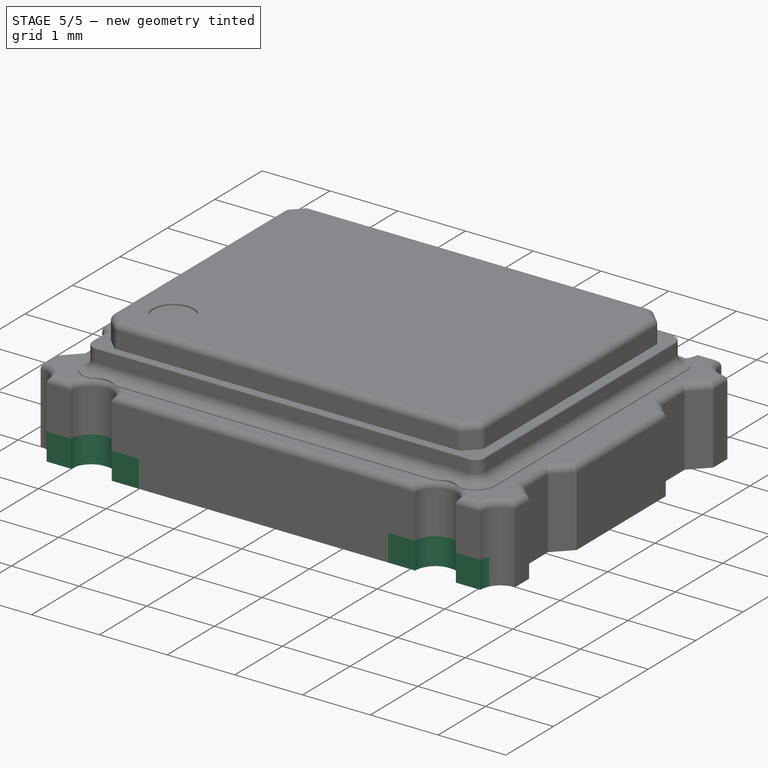
[diagram: stage 5 of 5 — iso view after this stage's code; geometry added in this stage tinted green]
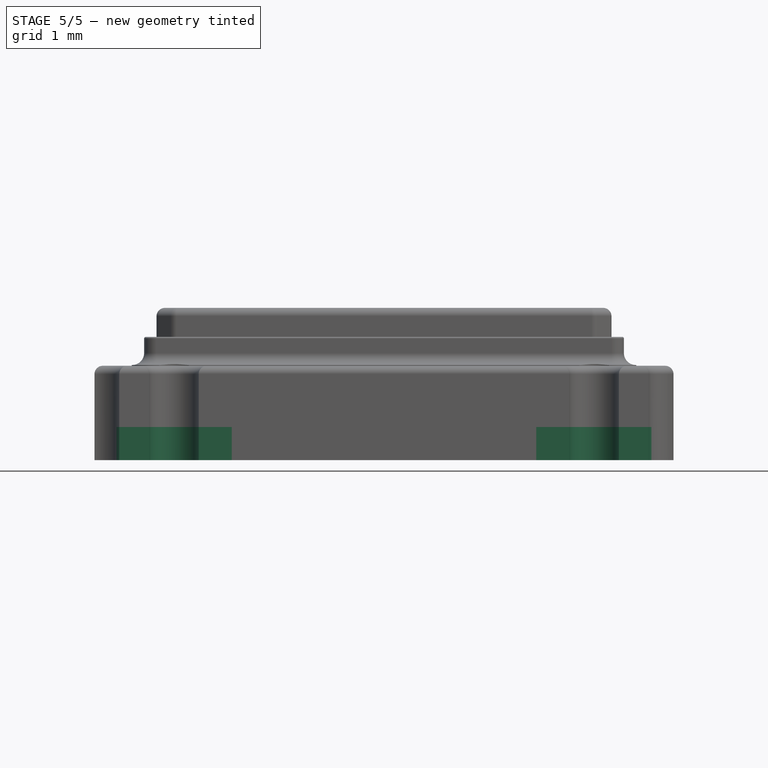
[diagram: stage 5 of 5 — front view after this stage's code; geometry added in this stage tinted green]
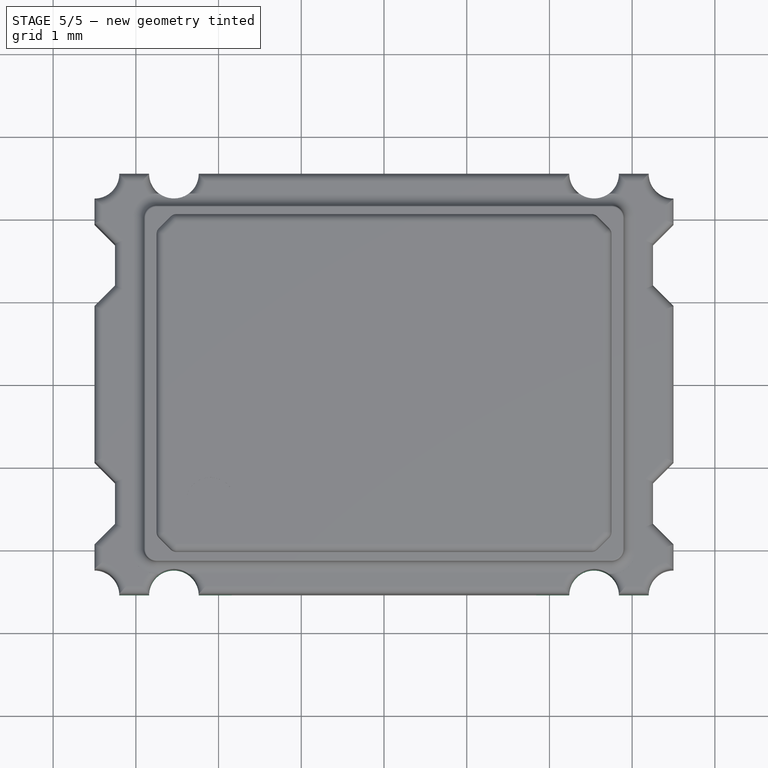
[diagram: stage 5 of 5 — top view after this stage's code; geometry added in this stage tinted green]
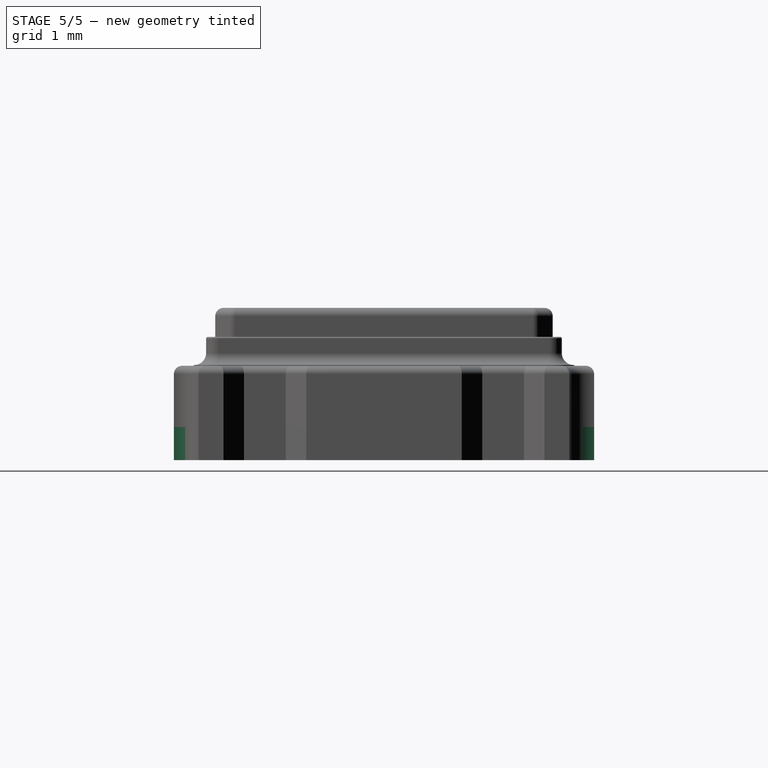
[diagram: stage 5 of 5 — right view after this stage's code; geometry added in this stage tinted green]
FEATURE [PartDesign::Pad] Pad005
  BaseFeature = -> Pad004
  Length = 0.4
  Length2 = 100
  Profile = -> Sketch006
  Type = 0
FEATURE [Sketcher::SketchObject] Sketch008
  MapMode = 5
  Support = -> [XY_Plane003]
  sketch-geometry (8):
    g0: Circle CenterX=-2.54 CenterY=2.54 CenterZ=0 NormalX=0 NormalY=0 NormalZ=1 AngleXU=0 Radius=0.3
    g1: Circle CenterX=2.54 CenterY=2.54 CenterZ=0 NormalX=0 NormalY=0 NormalZ=1 AngleXU=0 Radius=0.3
    g2: Circle CenterX=2.54 CenterY=-2.54 CenterZ=0 NormalX=0 NormalY=0 NormalZ=1 AngleXU=0 Radius=0.3
    g3: Circle CenterX=-2.54 CenterY=-2.54 CenterZ=0 NormalX=0 NormalY=0 NormalZ=1 AngleXU=0 Radius=0.3
    g4: Circle CenterX=-3.5 CenterY=2.54 CenterZ=0 NormalX=0 NormalY=0 NormalZ=1 AngleXU=0 Radius=0.3
    g5: Circle CenterX=3.5 CenterY=2.54 CenterZ=0 NormalX=0 NormalY=0 NormalZ=1 AngleXU=0 Radius=0.3
    g6: Circle CenterX=3.5 CenterY=-2.54 CenterZ=0 NormalX=0 NormalY=0 NormalZ=1 AngleXU=0 Radius=0.3
    g7: Circle CenterX=-3.5 CenterY=-2.54 CenterZ=0 NormalX=0 NormalY=0 NormalZ=1 AngleXU=0 Radius=0.3
  constraints (18):
    c: Radius(g0) = 0.3
    c: Symmetric(g0,g1,g-2)
    c: Symmetric(g0,g3,g-1)
    c: Symmetric(g3,g2,g-2)
    c: Equal(g0,g1)
    c: Equal(g0,g3)
    c: Equal(g3,g2)
    c: DistanceX(g0,g1) = 5.08
    c: DistanceY(g3,g0) = 5.08
    c: Equal(g4,g0)
    c: Equal(g4,g5)
    c: Equal(g4,g7)
    c: Equal(g7,g6)
    c: Symmetric(g4,g7,g-1)
    c: Symmetric(g5,g6,g-1)
    c: Symmetric(g5,g4,g-2)
    c: DistanceX(g4,g5) = 7
    c: DistanceY(g7,g4) = 5.08
FEATURE [PartDesign::Pocket] Pocket001
  BaseFeature = -> Pad005
  Length = 5
  Length2 = 100
  Midplane = true
  Profile = -> Sketch008
  Type = 1
FEATURE [PartDesign::Body] Body002  label="Cap"
  Group = -> [Sketch004,Pad003,Sketch011,Pocket004,Fillet003]
  Origin = -> Origin002
  Tip = -> Fillet003
FEATURE [Part::MultiFuse] Fusion
  Shapes = -> [Body003,Body001,Body002,Body,Body004]
FEATURE [Part::Feature] Fusion001  label="Oscillator_SMD_Abracon_ASV-4Pin_7.0x5.1mm"
  shape: bbox 7 x 5.08 x 1.84 mm, 176 faces (baked)
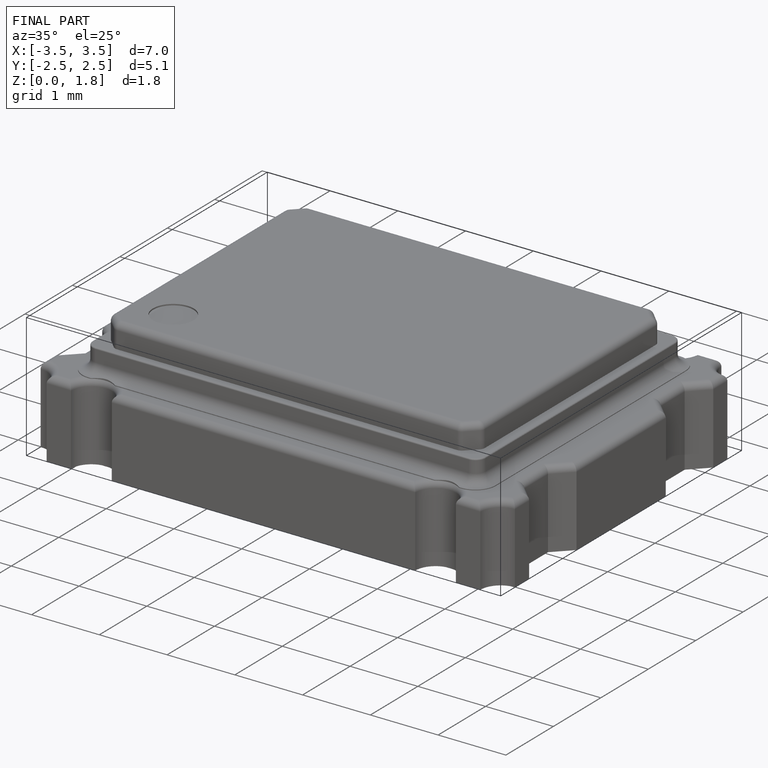
[diagram: finished part — iso view with bounding-box wireframe]
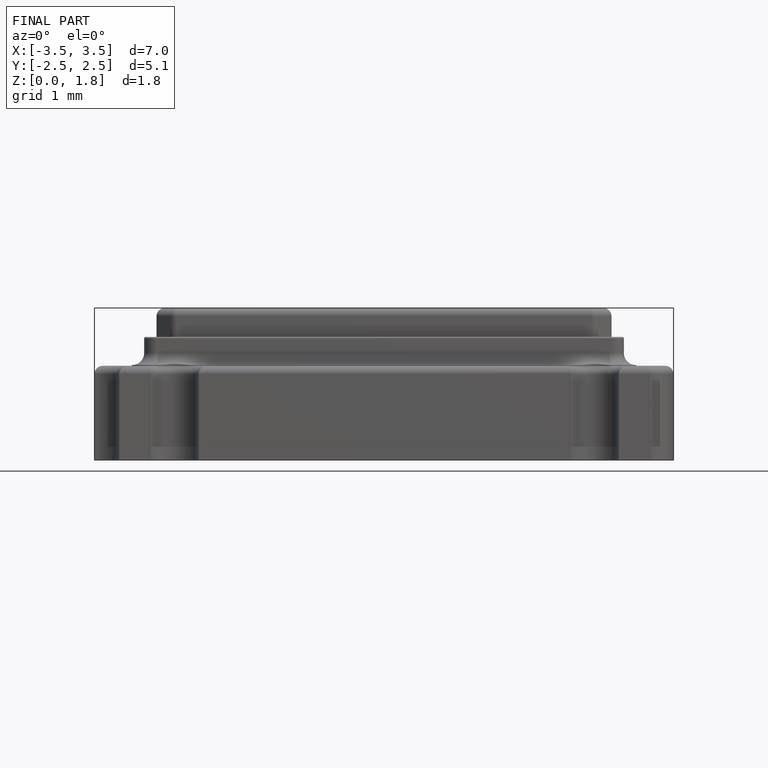
[diagram: finished part — front view with bounding-box wireframe]
